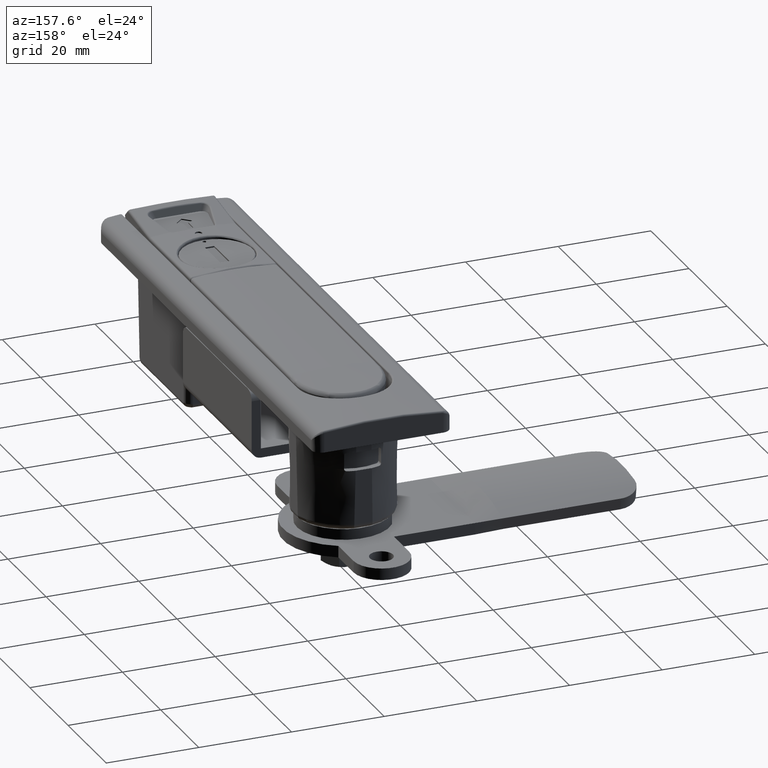
[diagram: clean part render]
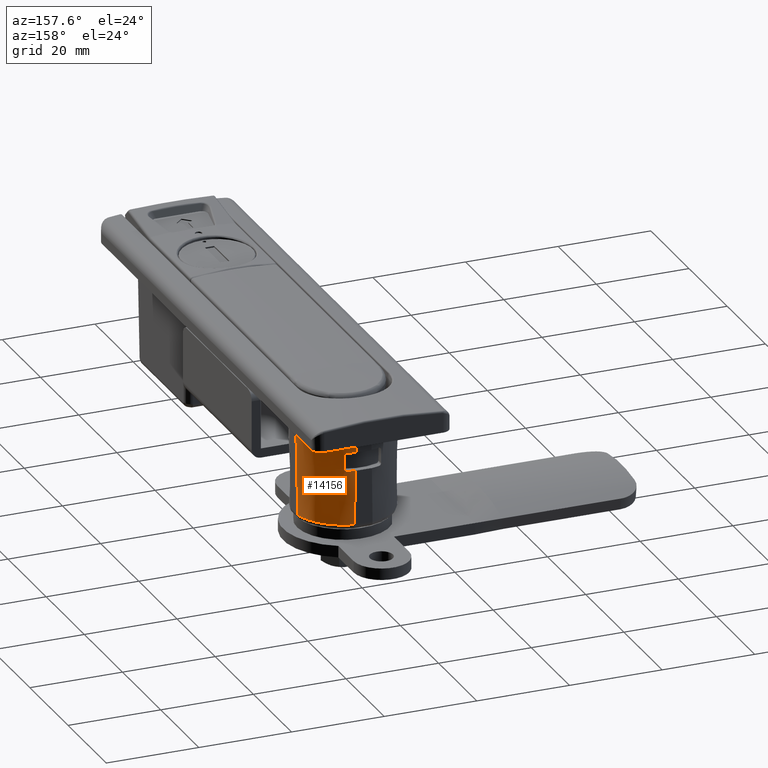
[diagram: same view with one face highlighted and labeled with its STEP entity id]
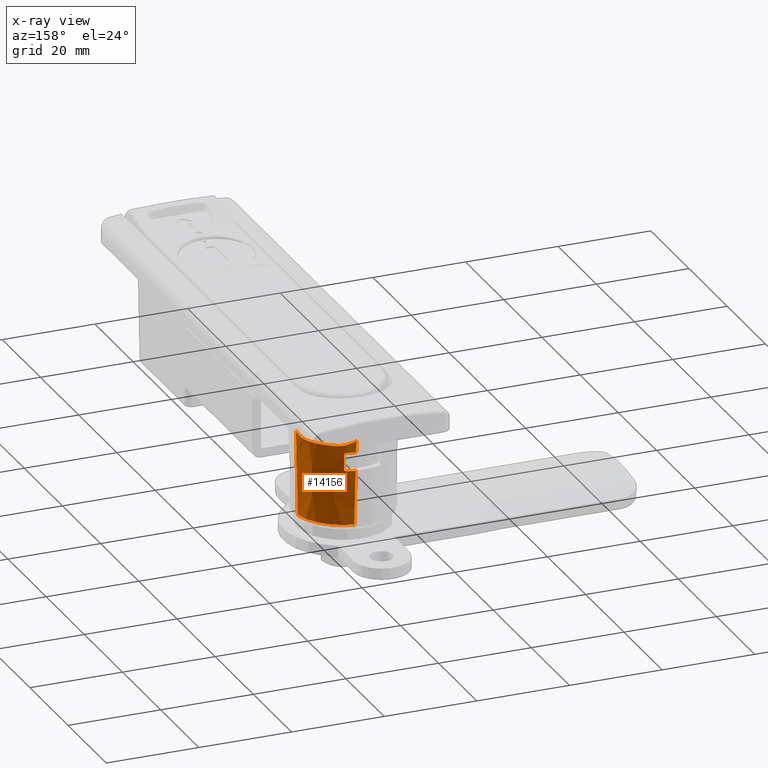
[diagram: x-ray of the same camera — body ghosted, the highlighted face saturated]
A machine part, auxiliary view. The second image highlights one B-rep face of the part: STEP entity #14156.
The next image is the same camera in x-ray: the body ghosted, the highlighted face saturated — about 0% of this face is hidden behind the body in this view.
In plain terms, the highlighted conical surface has half-angle 0.6 deg.
Its self-contained STEP definition (entity closure, byte-faithful):
#391=CONICAL_SURFACE('',#15111,10.7999364046344,0.0104719755119659);
#514=ELLIPSE('',#15066,464.240070481223,4.28746680562006);
#527=ELLIPSE('',#15099,464.240070481302,4.28746680562079);
#531=ELLIPSE('',#15113,464.240070481223,4.28746680562006);
#750=LINE('',#29547,#1670);
#1670=VECTOR('',#16849,3.00018986070262);
#2844=FACE_OUTER_BOUND('',#3724,.T.);
#3724=EDGE_LOOP('',(#9693,#9694,#9695,#9696,#9697,#9698,#9699,#9700,#9701,
#9702,#9703,#9704));
#4722=B_SPLINE_CURVE_WITH_KNOTS('',3,(#29445,#29446,#29447,#29448,#29449,
#29450,#29451,#29452,#29453,#29454,#29455,#29456,#29457,#29458),
 .UNSPECIFIED.,.F.,.F.,(4,2,2,2,2,2,4),(-0.388838719863287,-0.256785188667048,
-0.122399153723811,-0.0304695391112124,-0.0152347695556063,-0.00761738477780316,
-0.000433273531865472),.UNSPECIFIED.);
#4723=B_SPLINE_CURVE_WITH_KNOTS('',3,(#29465,#29466,#29467,#29468,#29469,
#29470,#29471,#29472,#29473,#29474,#29475,#29476,#29477,#29478),
 .UNSPECIFIED.,.F.,.F.,(4,2,2,2,2,2,4),(0.000433273531856119,0.00761738477780543,
0.0152347695556109,0.0304695391112217,0.122399153723792,0.256785188667006,
0.388838719863195),.UNSPECIFIED.);
#4725=B_SPLINE_CURVE_WITH_KNOTS('',3,(#29533,#29534,#29535,#29536,#29537,
#29538,#29539,#29540,#29541,#29542,#29543,#29544,#29545),.UNSPECIFIED.,
 .F.,.F.,(4,2,2,2,3,4),(-0.0774702934576899,-0.0575990105951256,-0.0375508184838082,
-0.0187754092419041,0.,0.000191541829865693),.UNSPECIFIED.);
#4726=B_SPLINE_CURVE_WITH_KNOTS('',3,(#29549,#29550,#29551,#29552,#29553,
#29554,#29555,#29556,#29557,#29558,#29559,#29560),.UNSPECIFIED.,.F.,.F.,
(4,2,2,2,2,4),(-0.154783829041601,-0.135829380190002,-0.116683938328833,
-0.0969088175474224,-0.0771336967660113,-0.0769573663693473),
 .UNSPECIFIED.);
#5131=CIRCLE('',#15106,10.9812398007408);
#5133=CIRCLE('',#15112,10.7999364046344);
#5134=CIRCLE('',#15114,10.9236418299682);
#5135=CIRCLE('',#15115,10.9655312632574);
#5889=VERTEX_POINT('',#28867);
#5890=VERTEX_POINT('',#28869);
#5945=VERTEX_POINT('',#29375);
#5946=VERTEX_POINT('',#29377);
#5952=VERTEX_POINT('',#29444);
#5953=VERTEX_POINT('',#29461);
#5955=VERTEX_POINT('',#29526);
#5956=VERTEX_POINT('',#29528);
#5957=VERTEX_POINT('',#29530);
#5958=VERTEX_POINT('',#29532);
#5959=VERTEX_POINT('',#29546);
#5960=VERTEX_POINT('',#29548);
#7320=EDGE_CURVE('',#5890,#5889,#514,.T.);
#7381=EDGE_CURVE('',#5946,#5945,#527,.T.);
#7392=EDGE_CURVE('',#5952,#5946,#4722,.T.);
#7394=EDGE_CURVE('',#5953,#5952,#5131,.T.);
#7396=EDGE_CURVE('',#5889,#5953,#4723,.T.);
#7400=EDGE_CURVE('',#5945,#5955,#5133,.T.);
#7401=EDGE_CURVE('',#5955,#5956,#531,.T.);
#7402=EDGE_CURVE('',#5957,#5956,#5134,.T.);
#7403=EDGE_CURVE('',#5957,#5958,#4725,.T.);
#7404=EDGE_CURVE('',#5959,#5958,#750,.T.);
#7405=EDGE_CURVE('',#5959,#5960,#4726,.T.);
#7406=EDGE_CURVE('',#5890,#5960,#5135,.T.);
#9693=ORIENTED_EDGE('',*,*,#7381,.T.);
#9694=ORIENTED_EDGE('',*,*,#7400,.T.);
#9695=ORIENTED_EDGE('',*,*,#7401,.T.);
#9696=ORIENTED_EDGE('',*,*,#7402,.F.);
#9697=ORIENTED_EDGE('',*,*,#7403,.T.);
#9698=ORIENTED_EDGE('',*,*,#7404,.F.);
#9699=ORIENTED_EDGE('',*,*,#7405,.T.);
#9700=ORIENTED_EDGE('',*,*,#7406,.F.);
#9701=ORIENTED_EDGE('',*,*,#7320,.T.);
#9702=ORIENTED_EDGE('',*,*,#7396,.T.);
#9703=ORIENTED_EDGE('',*,*,#7394,.T.);
#9704=ORIENTED_EDGE('',*,*,#7392,.T.);
#14156=ADVANCED_FACE('',(#2844),#391,.T.);
#15066=AXIS2_PLACEMENT_3D('',#28870,#16716,#16717);
#15099=AXIS2_PLACEMENT_3D('',#29378,#16810,#16811);
#15106=AXIS2_PLACEMENT_3D('',#29462,#16830,#16831);
#15111=AXIS2_PLACEMENT_3D('',#29525,#16841,#16842);
#15112=AXIS2_PLACEMENT_3D('',#29527,#16843,#16844);
#15113=AXIS2_PLACEMENT_3D('',#29529,#16845,#16846);
#15114=AXIS2_PLACEMENT_3D('',#29531,#16847,#16848);
#15115=AXIS2_PLACEMENT_3D('',#29561,#16850,#16851);
#16716=DIRECTION('center_axis',(-0.999902524009304,0.,-0.0139621803391458));
#16717=DIRECTION('ref_axis',(0.0139621803391458,0.,-0.999902524009304));
#16810=DIRECTION('center_axis',(0.,-0.999902524009304,-0.0139621803391464));
#16811=DIRECTION('ref_axis',(0.,0.0139621803391464,-0.999902524009304));
#16830=DIRECTION('center_axis',(0.,0.,1.));
#16831=DIRECTION('ref_axis',(1.,0.,0.));
#16841=DIRECTION('center_axis',(0.,0.,-1.));
#16842=DIRECTION('ref_axis',(1.,0.,0.));
#16843=DIRECTION('center_axis',(0.,0.,-1.));
#16844=DIRECTION('ref_axis',(1.,0.,0.));
#16845=DIRECTION('center_axis',(-0.999902524009304,0.,-0.0139621803391458));
#16846=DIRECTION('ref_axis',(0.0139621803391458,0.,-0.999902524009304));
#16847=DIRECTION('center_axis',(0.,2.16840434497101E-15,-1.));
#16848=DIRECTION('ref_axis',(0.,1.,2.16840434497101E-15));
#16849=DIRECTION('',(-0.0112499683143819,0.,0.9999367171041));
#16850=DIRECTION('center_axis',(0.,-1.7347234759768E-15,1.));
#16851=DIRECTION('ref_axis',(0.,-1.,-1.7347234759768E-15));
#28867=CARTESIAN_POINT('',(160.877155630683,-98.4039386928244,1.16675461640693));
#28869=CARTESIAN_POINT('',(160.839688022551,-98.3434857503688,3.85));
#28870=CARTESIAN_POINT('Origin',(154.861214467751,-100.,431.998802834719));
#29375=CARTESIAN_POINT('',(151.969220975073,-89.3811114001757,19.6625661409394));
#29377=CARTESIAN_POINT('',(151.596061307176,-89.1228443693167,1.16675461640699));
#29378=CARTESIAN_POINT('Origin',(150.,-95.1387855322505,431.998802834796));
#29444=CARTESIAN_POINT('',(155.190185213499,-90.3227273981279,2.35000000000001));
#29445=CARTESIAN_POINT('Ctrl Pts',(155.190185213499,-90.3227273981277,2.35000000000001));
#29446=CARTESIAN_POINT('Ctrl Pts',(154.801173373395,-90.114089739208,2.34999999999999));
#29447=CARTESIAN_POINT('Ctrl Pts',(154.368057030825,-89.9133046428685,2.29438373681084));
#29448=CARTESIAN_POINT('Ctrl Pts',(153.483184752467,-89.5721613670244,2.10667259147777));
#29449=CARTESIAN_POINT('Ctrl Pts',(153.030847204637,-89.4327918782872,1.97524900371947));
#29450=CARTESIAN_POINT('Ctrl Pts',(152.341321031529,-89.2606513454348,1.72222968839866));
#29451=CARTESIAN_POINT('Ctrl Pts',(152.003200329987,-89.1922190873684,1.59491793744936));
#29452=CARTESIAN_POINT('Ctrl Pts',(151.722700390116,-89.1443560612032,1.37897536444032));
#29453=CARTESIAN_POINT('Ctrl Pts',(151.681332671232,-89.1375105714208,1.34231831823676));
#29454=CARTESIAN_POINT('Ctrl Pts',(151.633722009761,-89.129627158497,1.28021375393597));
#29455=CARTESIAN_POINT('Ctrl Pts',(151.620332576129,-89.1273982997773,1.25827785154931));
#29456=CARTESIAN_POINT('Ctrl Pts',(151.601979757325,-89.1242045072133,1.21340311507492));
#29457=CARTESIAN_POINT('Ctrl Pts',(151.596609955099,-89.1231770517891,1.19057969500305));
#29458=CARTESIAN_POINT('Ctrl Pts',(151.596061307176,-89.1228443693166,1.16675461640698));
#29461=CARTESIAN_POINT('',(159.677272601872,-94.8098147865009,2.35000000000001));
#29462=CARTESIAN_POINT('Origin',(150.,-100.,2.35000000000001));
#29465=CARTESIAN_POINT('Ctrl Pts',(160.877155630683,-98.4039386928224,1.16675461640689));
#29466=CARTESIAN_POINT('Ctrl Pts',(160.876822948211,-98.4033900448995,1.190579695003));
#29467=CARTESIAN_POINT('Ctrl Pts',(160.875795492786,-98.3980202426743,1.21340311507487));
#29468=CARTESIAN_POINT('Ctrl Pts',(160.872601700223,-98.3796674238703,1.2582778515493));
#29469=CARTESIAN_POINT('Ctrl Pts',(160.870372841503,-98.3662779902382,1.28021375393602));
#29470=CARTESIAN_POINT('Ctrl Pts',(160.862489428579,-98.3186673287671,1.34231831823686));
#29471=CARTESIAN_POINT('Ctrl Pts',(160.855643938797,-98.2772996098833,1.37897536444032));
#29472=CARTESIAN_POINT('Ctrl Pts',(160.807780912631,-97.9967996700118,1.5949179374494));
#29473=CARTESIAN_POINT('Ctrl Pts',(160.739348654565,-97.6586789684698,1.72222968839869));
#29474=CARTESIAN_POINT('Ctrl Pts',(160.567208121713,-96.9691527953625,1.97524900371951));
#29475=CARTESIAN_POINT('Ctrl Pts',(160.427838632975,-96.5168152475322,2.1066725914778));
#29476=CARTESIAN_POINT('Ctrl Pts',(160.086695357131,-95.631942969175,2.29438373681082));
#29477=CARTESIAN_POINT('Ctrl Pts',(159.885910260792,-95.1988266266044,2.34999999999997));
#29478=CARTESIAN_POINT('Ctrl Pts',(159.677272601872,-94.8098147865008,2.35000000000001));
#29525=CARTESIAN_POINT('Origin',(150.,-100.,19.6625661409395));
#29526=CARTESIAN_POINT('',(160.618888599824,-98.0307790249272,19.6625661409394));
#29527=CARTESIAN_POINT('Origin',(150.,-100.,19.6625661409395));
#29528=CARTESIAN_POINT('',(160.783833856755,-98.2579098245662,7.85));
#29529=CARTESIAN_POINT('Origin',(154.861214467751,-100.,431.998802834719));
#29530=CARTESIAN_POINT('',(160.347751003451,-96.5000000000002,7.85));
#29531=CARTESIAN_POINT('Origin',(150.,-100.,7.85));
#29532=CARTESIAN_POINT('',(160.170564120954,-96.0000000000003,7.34999999999999));
#29533=CARTESIAN_POINT('Ctrl Pts',(160.347751003451,-96.5,7.84999999999999));
#29534=CARTESIAN_POINT('Ctrl Pts',(160.326502047917,-96.4371774568692,7.84999999999996));
#29535=CARTESIAN_POINT('Ctrl Pts',(160.303294041521,-96.3702270582309,7.83748629453473));
#29536=CARTESIAN_POINT('Ctrl Pts',(160.259254909726,-96.2459780186457,7.7859322521479));
#29537=CARTESIAN_POINT('Ctrl Pts',(160.238476697922,-96.1887627302571,7.74663789506131));
#29538=CARTESIAN_POINT('Ctrl Pts',(160.206326421969,-96.1008966555713,7.65723219285548));
#29539=CARTESIAN_POINT('Ctrl Pts',(160.192447293135,-96.0633296744342,7.60225877717609));
#29540=CARTESIAN_POINT('Ctrl Pts',(160.174225656074,-96.0129884316188,7.48090144883059));
#29541=CARTESIAN_POINT('Ctrl Pts',(160.1699340999,-96.0002435415087,7.41449770985378));
#29542=CARTESIAN_POINT('Ctrl Pts',(160.170543999347,-96.0000036727712,7.35191644393944));
#29543=CARTESIAN_POINT('Ctrl Pts',(160.170550221382,-96.0000012256928,7.35127800618109));
#29544=CARTESIAN_POINT('Ctrl Pts',(160.170556928057,-96.0000000000003,7.35063918825519));
#29545=CARTESIAN_POINT('Ctrl Pts',(160.170564120954,-96.0000000000003,7.34999999999999));
#29546=CARTESIAN_POINT('',(160.204316161824,-96.0000000000003,4.35));
#29547=CARTESIAN_POINT('',(160.204316161824,-96.0000000000003,4.35));
#29548=CARTESIAN_POINT('',(160.391962080641,-96.5000000000003,3.85000000000001));
#29549=CARTESIAN_POINT('Ctrl Pts',(160.204316161824,-96.0000000000003,4.35));
#29550=CARTESIAN_POINT('Ctrl Pts',(160.205027634421,-96.0000000000003,4.28674784264152));
#29551=CARTESIAN_POINT('Ctrl Pts',(160.210796955385,-96.0127307224565,4.2198688753037));
#29552=CARTESIAN_POINT('Ctrl Pts',(160.231859331908,-96.0635121444286,4.0971517488254));
#29553=CARTESIAN_POINT('Ctrl Pts',(160.247200645,-96.1018002576597,4.0414094971465));
#29554=CARTESIAN_POINT('Ctrl Pts',(160.281315753769,-96.1899907076691,3.95258479176862));
#29555=CARTESIAN_POINT('Ctrl Pts',(160.302550100283,-96.246346864466,3.91400331587855));
#29556=CARTESIAN_POINT('Ctrl Pts',(160.347080255496,-96.3692789128606,3.86281931387034));
#29557=CARTESIAN_POINT('Ctrl Pts',(160.370347184809,-96.4358631410077,3.85021168963465));
#29558=CARTESIAN_POINT('Ctrl Pts',(160.39158645654,-96.4988849015122,3.85000093321015));
#29559=CARTESIAN_POINT('Ctrl Pts',(160.391774236127,-96.4994422648402,3.85000000000001));
#29560=CARTESIAN_POINT('Ctrl Pts',(160.391962080641,-96.5000000000004,3.85000000000001));
#29561=CARTESIAN_POINT('Origin',(150.,-100.,3.85));